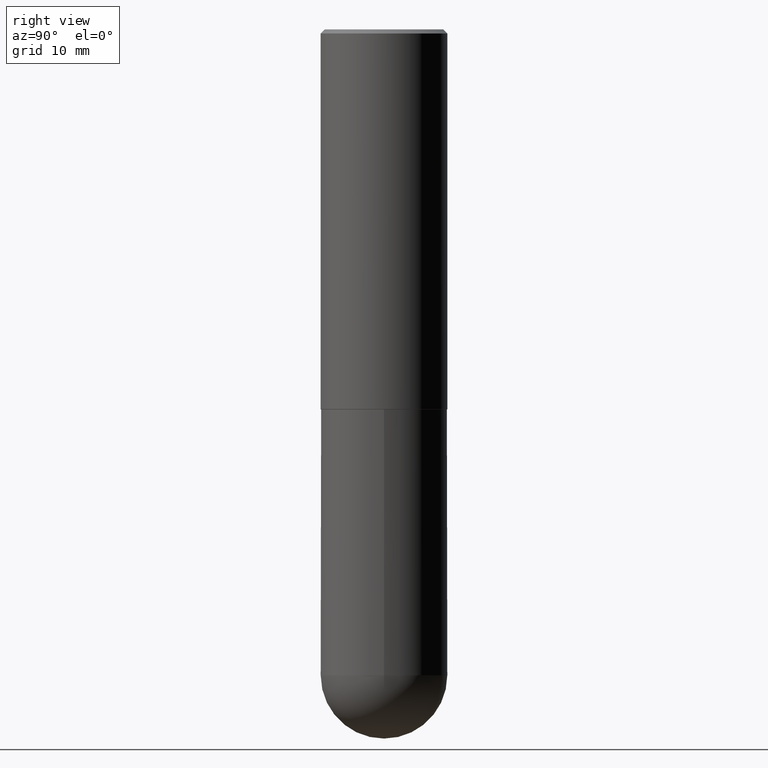
[diagram: clean part render]
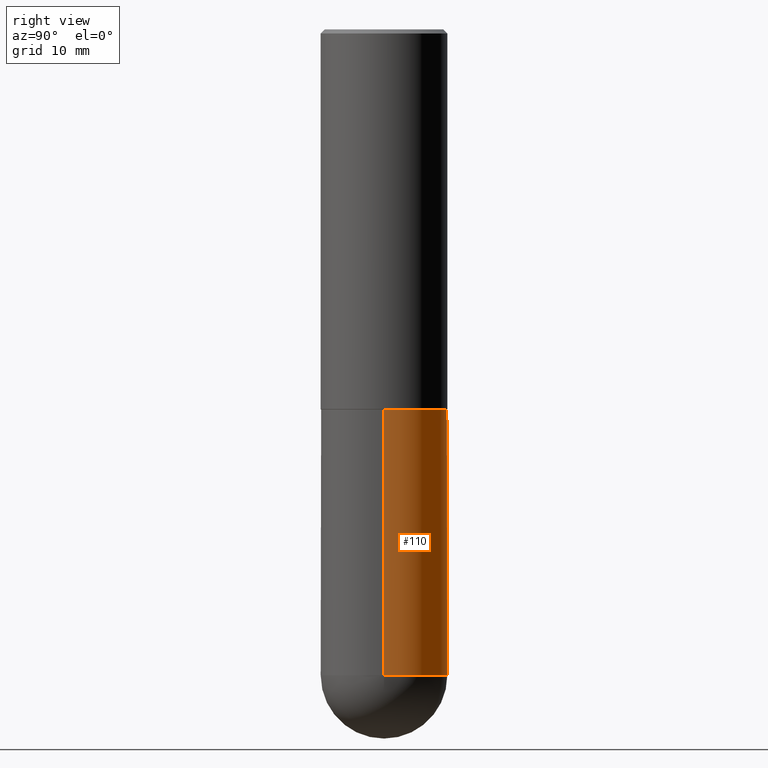
[diagram: same view with one face highlighted and labeled with its STEP entity id]
A machine part, right view. The second image highlights one B-rep face of the part: STEP entity #110.
In plain terms, the highlighted cylindrical surface (partial cylindrical patch) has radius 7.9375 mm, axis along (-0, 0, 1).
Its self-contained STEP definition (entity closure, byte-faithful):
#13 = VERTEX_POINT ( 'NONE', #301 ) ;
#21 = EDGE_CURVE ( 'NONE', #13, #166, #407, .T. ) ;
#22 = ORIENTED_EDGE ( 'NONE', *, *, #21, .T. ) ;
#31 = DIRECTION ( 'NONE',  ( 1.000000000000000000, -6.982962677686266711E-15, 4.876176775795936353E-29 ) ) ;
#34 = DIRECTION ( 'NONE',  ( 1.000000000000000000, -6.982962677686269077E-15, 0.000000000000000000 ) ) ;
#43 = CARTESIAN_POINT ( 'NONE',  ( 0.3125000000000000000, -8.728703347107855476E-15, -1.874999999999999778 ) ) ;
#47 = VERTEX_POINT ( 'NONE', #154 ) ;
#51 = ORIENTED_EDGE ( 'NONE', *, *, #392, .T. ) ;
#61 = DIRECTION ( 'NONE',  ( -2.445468806185136597E-29, 3.491481338843145583E-15, 1.000000000000000000 ) ) ;
#66 = DIRECTION ( 'NONE',  ( -2.445468806185136877E-29, 3.491481338843145188E-15, 1.000000000000000000 ) ) ;
#84 = LINE ( 'NONE', #312, #338 ) ;
#89 = CIRCLE ( 'NONE', #198, 0.3125000000000000000 ) ;
#90 = CARTESIAN_POINT ( 'NONE',  ( 0.000000000000000000, 0.000000000000000000, 0.000000000000000000 ) ) ;
#96 = AXIS2_PLACEMENT_3D ( 'NONE', #372, #169, #240 ) ;
#97 = LINE ( 'NONE', #165, #153 ) ;
#110 = ADVANCED_FACE ( 'NONE', ( #411 ), #182, .T. ) ;
#153 = VECTOR ( 'NONE', #66, 39.37007874015748143 ) ;
#154 = CARTESIAN_POINT ( 'NONE',  ( 0.3125000000000000000, -1.101998797572367239E-14, -3.187500000000000000 ) ) ;
#165 = CARTESIAN_POINT ( 'NONE',  ( -0.3125000000000000000, 2.220446049250313081E-15, -1.537167215704658232E-29 ) ) ;
#166 = VERTEX_POINT ( 'NONE', #249 ) ;
#169 = DIRECTION ( 'NONE',  ( -2.445468806185136597E-29, 3.491481338843145583E-15, 1.000000000000000000 ) ) ;
#182 = CYLINDRICAL_SURFACE ( 'NONE', #358, 0.3125000000000000000 ) ;
#189 = EDGE_CURVE ( 'NONE', #47, #402, #84, .T. ) ;
#198 = AXIS2_PLACEMENT_3D ( 'NONE', #354, #269, #261 ) ;
#209 = ORIENTED_EDGE ( 'NONE', *, *, #189, .F. ) ;
#222 = CARTESIAN_POINT ( 'NONE',  ( 7.794931819715121781E-29, -1.112909676756252622E-14, -3.187500000000000000 ) ) ;
#232 = CARTESIAN_POINT ( 'NONE',  ( -0.3125000000000000000, -6.617366089696398596E-15, -1.874999999999999778 ) ) ;
#239 = EDGE_CURVE ( 'NONE', #402, #268, #89, .T. ) ;
#240 = DIRECTION ( 'NONE',  ( 1.000000000000000000, -6.982962677686269077E-15, 0.000000000000000000 ) ) ;
#242 = ORIENTED_EDGE ( 'NONE', *, *, #239, .F. ) ;
#244 = AXIS2_PLACEMENT_3D ( 'NONE', #222, #313, #34 ) ;
#249 = CARTESIAN_POINT ( 'NONE',  ( -0.3125000000000000000, -6.617366089696400174E-15, -3.187500000000000000 ) ) ;
#261 = DIRECTION ( 'NONE',  ( 1.000000000000000000, -6.982962677686265133E-15, 0.000000000000000000 ) ) ;
#268 = VERTEX_POINT ( 'NONE', #232 ) ;
#269 = DIRECTION ( 'NONE',  ( -2.445468806185136597E-29, 3.491481338843145583E-15, 1.000000000000000000 ) ) ;
#301 = CARTESIAN_POINT ( 'NONE',  ( 2.182175836777035261E-15, 0.3124999999999887867, -3.187500000000000888 ) ) ;
#308 = CIRCLE ( 'NONE', #96, 0.3125000000000000000 ) ;
#312 = CARTESIAN_POINT ( 'NONE',  ( 0.3125000000000000000, -2.182175836776958347E-15, 1.523805242436230075E-29 ) ) ;
#313 = DIRECTION ( 'NONE',  ( -2.445468806185136597E-29, 3.491481338843145583E-15, 1.000000000000000000 ) ) ;
#321 = EDGE_CURVE ( 'NONE', #166, #268, #97, .T. ) ;
#336 = ORIENTED_EDGE ( 'NONE', *, *, #321, .T. ) ;
#337 = EDGE_LOOP ( 'NONE', ( #22, #336, #242, #209, #51 ) ) ;
#338 = VECTOR ( 'NONE', #343, 39.37007874015748143 ) ;
#343 = DIRECTION ( 'NONE',  ( -2.445468806185136877E-29, 3.491481338843145188E-15, 1.000000000000000000 ) ) ;
#354 = CARTESIAN_POINT ( 'NONE',  ( 4.585254011597130558E-29, -6.546527510330897918E-15, -1.874999999999999778 ) ) ;
#358 = AXIS2_PLACEMENT_3D ( 'NONE', #90, #61, #31 ) ;
#372 = CARTESIAN_POINT ( 'NONE',  ( 7.794931819715121781E-29, -1.112909676756252622E-14, -3.187500000000000000 ) ) ;
#392 = EDGE_CURVE ( 'NONE', #47, #13, #308, .T. ) ;
#402 = VERTEX_POINT ( 'NONE', #43 ) ;
#407 = CIRCLE ( 'NONE', #244, 0.3125000000000000000 ) ;
#411 = FACE_OUTER_BOUND ( 'NONE', #337, .T. ) ;